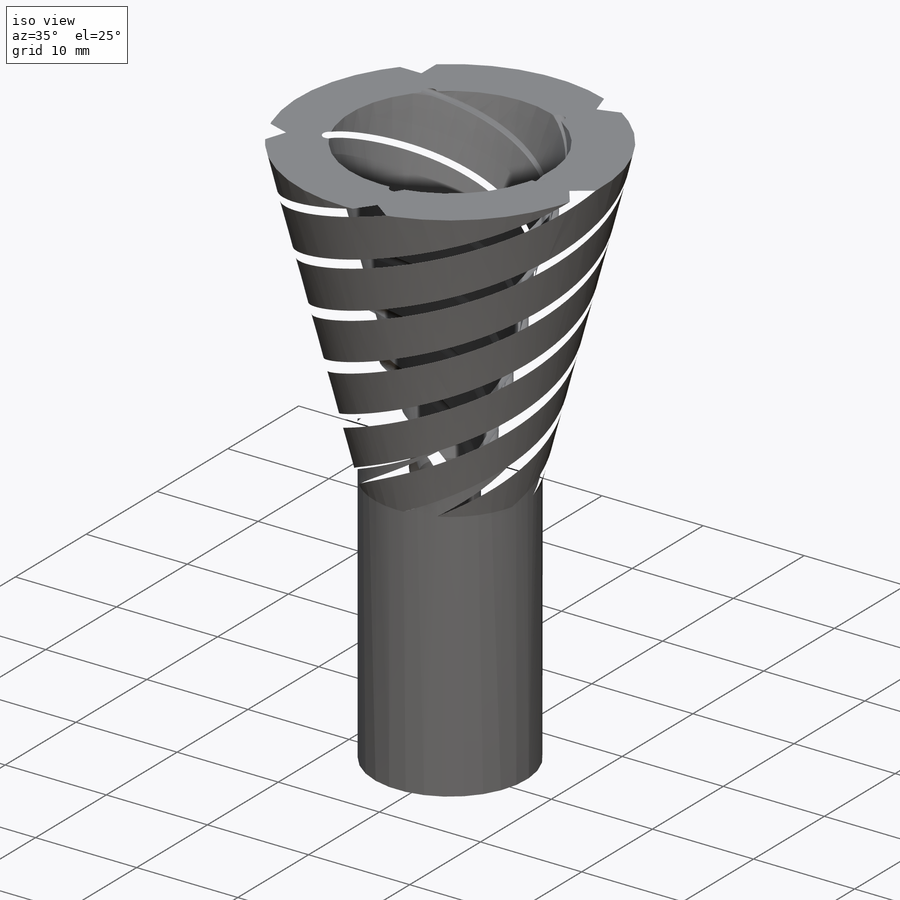
[diagram: iso view]
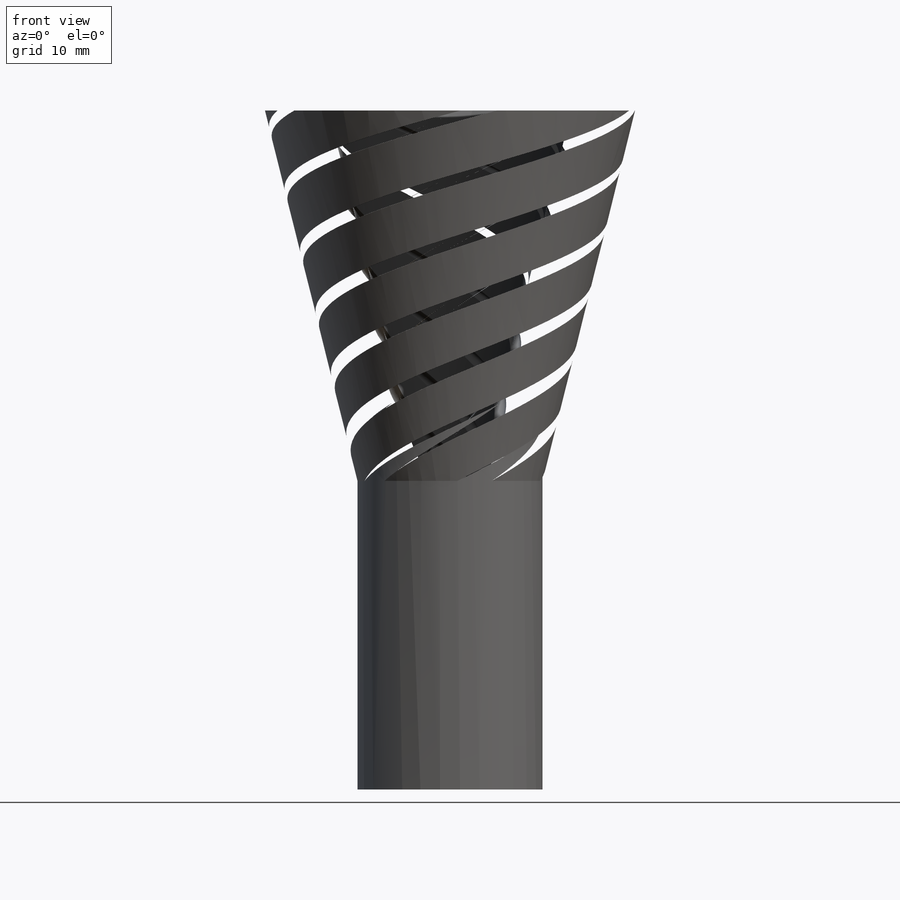
[diagram: front view]
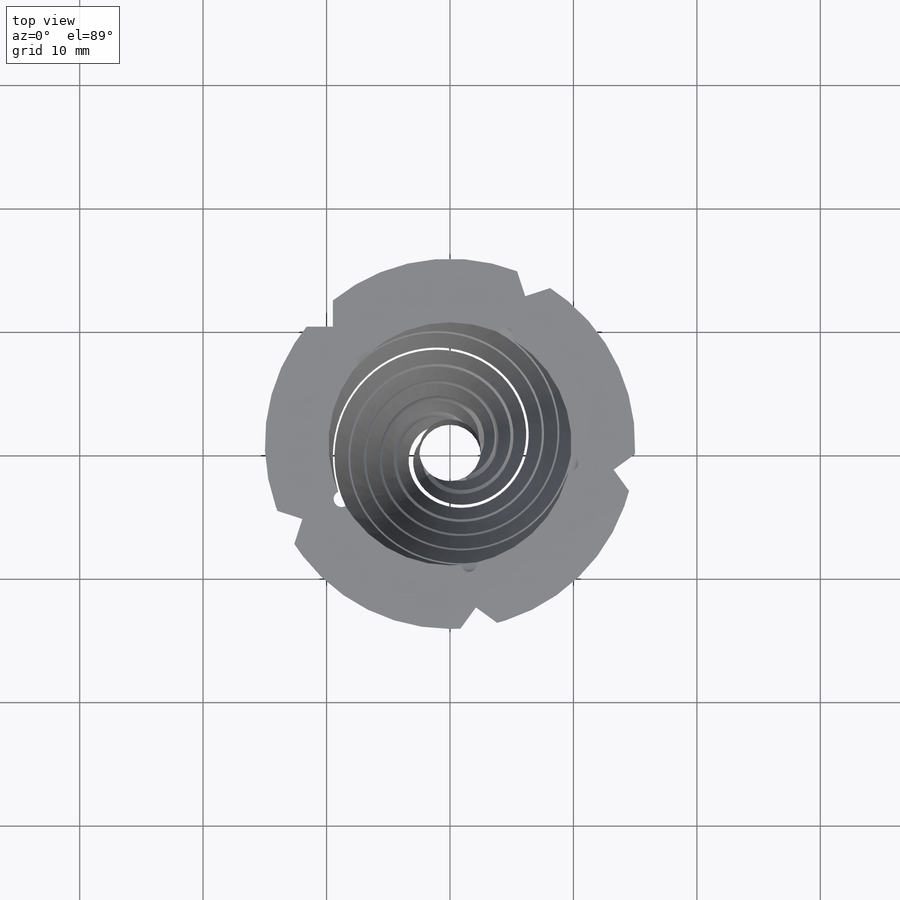
[diagram: top view]
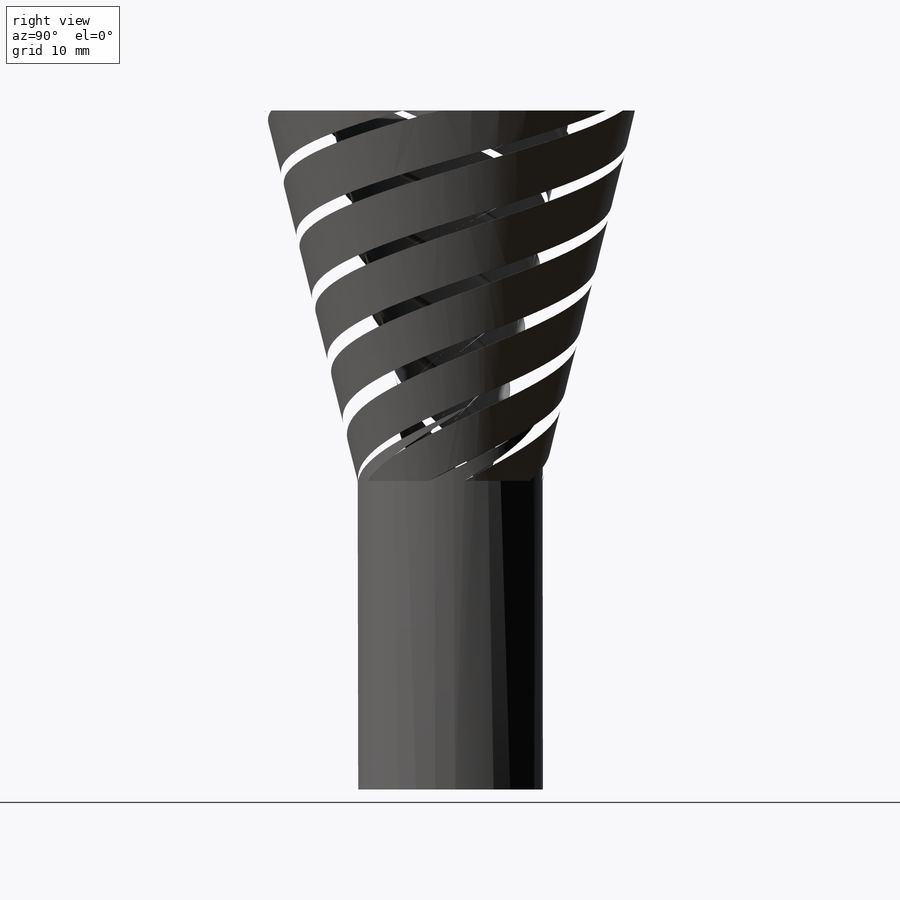
[diagram: right view]
SOLIDWORKS PART (.sldprt)
format: sldprt  version: not decoded by parser v0  size: 896,512 bytes
history: native  units: mm
features: sketch x5, helix x2, sweep x2, pattern_circular x2, material x1, revolve x1, shell x1 (+11 scaffold rows collapsed)
feature tree (25):
  scaffold x11  (default folders/planes/origin — collapsed)
  material  "Material <not specified>"
  sketch  "Sketch1"  dims[c1.D1=15.0mm c1.D2=30.0mm c1.D3=7.5mm c2.D3=165.0deg c2.D4=25.0mm c2.D5=~27.990381mm c3.D3=30.0mm]
  revolve  "Revolve1"  Angle=360deg
  shell  "Shell1"  Thickness=5mm
  sketch  "Sketch3"
  helix  "Helix/Spiral1"  Pitch=30mm
  sketch  "Sketch4"  dims[D1=0.2mm D2=0.3mm]
  sweep  "Cut-Sweep6"
  pattern_circular  "CirPattern2"  Count=5 Angle=360deg
  sketch  "Sketch5"
  helix  "Helix/Spiral2"  Pitch=30mm
  sketch  "Sketch6"
  sweep  "Cut-Sweep7"
  pattern_circular  "CirPattern3"  Count=5 Angle=360deg
decode coverage: 8 of 13 modeling features carry decoded parameters
note: ~ marks probable driven/reference dimensions
note: suppression state not decoded; provenance and decode notes live in map.json
